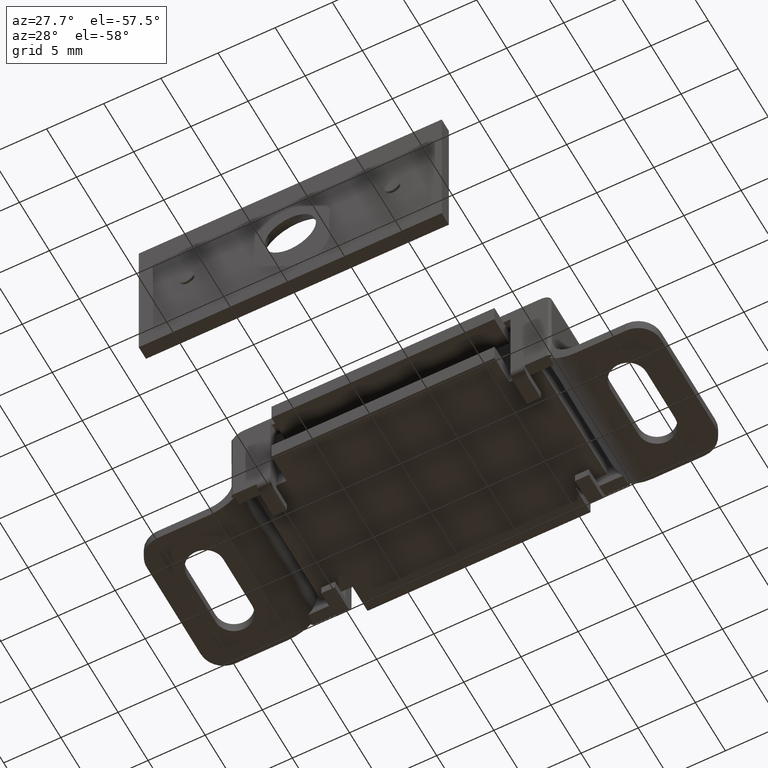
[diagram: clean part render]
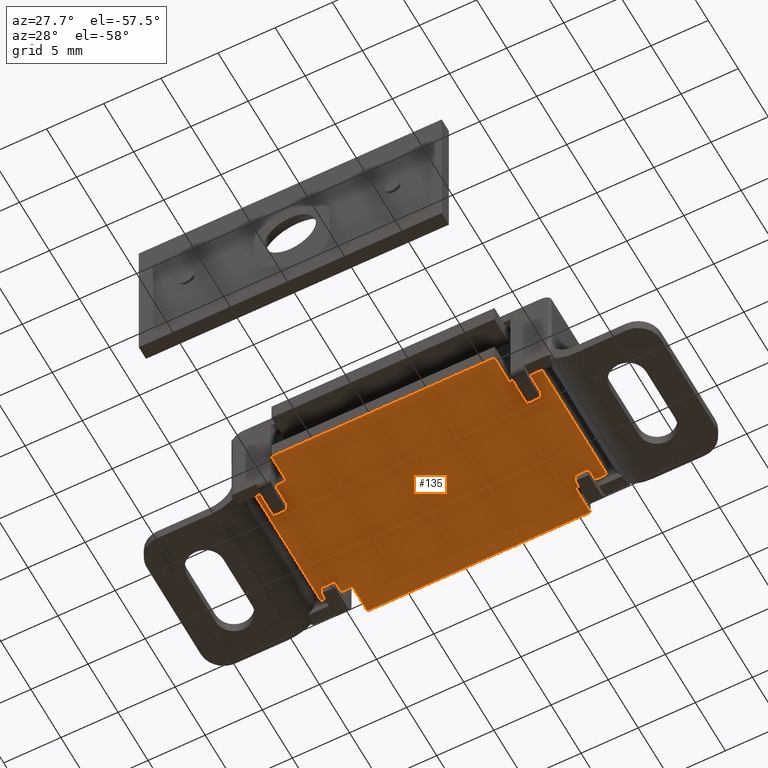
[diagram: same view with one face highlighted and labeled with its STEP entity id]
A machine part, auxiliary view. The second image highlights one B-rep face of the part: STEP entity #135.
In plain terms, the highlighted face is a freeform B-spline surface patch.
Its self-contained STEP definition (entity closure, byte-faithful):
#44=CARTESIAN_POINT('',(-13.748749951545150,-8.799199968988896,1.800003000000000));
#45=CARTESIAN_POINT('',(13.748750622097401,-8.799199968988896,1.800003000000000));
#46=CARTESIAN_POINT('',(-13.748749951545150,8.799200398142338,1.800003000000000));
#47=CARTESIAN_POINT('',(13.748750622097401,8.799200398142338,1.800003000000000));
#48=B_SPLINE_SURFACE_WITH_KNOTS('',1,1,((#44,#46),(#45,#47)),.UNSPECIFIED.,.F.,.F.,.U.,(2,2),(2,2),(0.0,27.497500573642551),(0.0,17.598400367131230),.UNSPECIFIED.);
#49=CARTESIAN_POINT('',(9.750000000000000,-5.500000000000000,1.800003000000050));
#50=VERTEX_POINT('',#49);
#51=CARTESIAN_POINT('',(9.750000000000000,-8.0,1.800003000000050));
#52=VERTEX_POINT('',#51);
#53=CARTESIAN_POINT('',(9.750000000000000,-5.500000000000000,1.800003000000050));
#54=CARTESIAN_POINT('',(9.750000000000000,-8.0,1.800003000000050));
#55=QUASI_UNIFORM_CURVE('',1,(#53,#54),.UNSPECIFIED.,.F.,.U.);
#56=EDGE_CURVE('',#50,#52,#55,.T.);
#57=ORIENTED_EDGE('',*,*,#56,.T.);
#58=CARTESIAN_POINT('',(-9.750000000000000,-8.0,1.800003000000050));
#59=VERTEX_POINT('',#58);
#60=CARTESIAN_POINT('',(9.750000000000000,-8.0,1.800003000000050));
#61=CARTESIAN_POINT('',(-9.750000000000000,-8.0,1.800003000000050));
#62=QUASI_UNIFORM_CURVE('',1,(#60,#61),.UNSPECIFIED.,.F.,.U.);
#63=EDGE_CURVE('',#52,#59,#62,.T.);
#64=ORIENTED_EDGE('',*,*,#63,.T.);
#65=CARTESIAN_POINT('',(-9.750000000000000,-5.500000000000000,1.800003000000050));
#66=VERTEX_POINT('',#65);
#67=CARTESIAN_POINT('',(-9.750000000000000,-8.0,1.800003000000050));
#68=CARTESIAN_POINT('',(-9.750000000000000,-5.500000000000000,1.800003000000050));
#69=QUASI_UNIFORM_CURVE('',1,(#67,#68),.UNSPECIFIED.,.F.,.U.);
#70=EDGE_CURVE('',#59,#66,#69,.T.);
#71=ORIENTED_EDGE('',*,*,#70,.T.);
#72=CARTESIAN_POINT('',(-12.500000000000000,-5.500000000000000,1.800003000000050));
#73=VERTEX_POINT('',#72);
#74=CARTESIAN_POINT('',(-9.750000000000000,-5.500000000000000,1.800003000000050));
#75=CARTESIAN_POINT('',(-12.500000000000000,-5.500000000000000,1.800003000000050));
#76=QUASI_UNIFORM_CURVE('',1,(#74,#75),.UNSPECIFIED.,.F.,.U.);
#77=EDGE_CURVE('',#66,#73,#76,.T.);
#78=ORIENTED_EDGE('',*,*,#77,.T.);
#79=CARTESIAN_POINT('',(-12.500000000000000,5.500000000000000,1.800003000000050));
#80=VERTEX_POINT('',#79);
#81=CARTESIAN_POINT('',(-12.500000000000000,-5.500000000000000,1.800003000000050));
#82=CARTESIAN_POINT('',(-12.500000000000000,5.500000000000000,1.800003000000050));
#83=QUASI_UNIFORM_CURVE('',1,(#81,#82),.UNSPECIFIED.,.F.,.U.);
#84=EDGE_CURVE('',#73,#80,#83,.T.);
#85=ORIENTED_EDGE('',*,*,#84,.T.);
#86=CARTESIAN_POINT('',(-9.750000000000000,5.500000000000000,1.800003000000050));
#87=VERTEX_POINT('',#86);
#88=CARTESIAN_POINT('',(-12.500000000000000,5.500000000000000,1.800003000000050));
#89=CARTESIAN_POINT('',(-9.750000000000000,5.500000000000000,1.800003000000050));
#90=QUASI_UNIFORM_CURVE('',1,(#88,#89),.UNSPECIFIED.,.F.,.U.);
#91=EDGE_CURVE('',#80,#87,#90,.T.);
#92=ORIENTED_EDGE('',*,*,#91,.T.);
#93=CARTESIAN_POINT('',(-9.750000000000000,8.0,1.800003000000050));
#94=VERTEX_POINT('',#93);
#95=CARTESIAN_POINT('',(-9.750000000000000,5.500000000000000,1.800003000000050));
#96=CARTESIAN_POINT('',(-9.750000000000000,8.0,1.800003000000050));
#97=QUASI_UNIFORM_CURVE('',1,(#95,#96),.UNSPECIFIED.,.F.,.U.);
#98=EDGE_CURVE('',#87,#94,#97,.T.);
#99=ORIENTED_EDGE('',*,*,#98,.T.);
#100=CARTESIAN_POINT('',(9.750000000000000,8.0,1.800003000000050));
#101=VERTEX_POINT('',#100);
#102=CARTESIAN_POINT('',(-9.750000000000000,8.0,1.800003000000050));
#103=CARTESIAN_POINT('',(9.750000000000000,8.0,1.800003000000050));
#104=QUASI_UNIFORM_CURVE('',1,(#102,#103),.UNSPECIFIED.,.F.,.U.);
#105=EDGE_CURVE('',#94,#101,#104,.T.);
#106=ORIENTED_EDGE('',*,*,#105,.T.);
#107=CARTESIAN_POINT('',(9.750000000000000,5.500000000000000,1.800003000000050));
#108=VERTEX_POINT('',#107);
#109=CARTESIAN_POINT('',(9.750000000000000,8.0,1.800003000000050));
#110=CARTESIAN_POINT('',(9.750000000000000,5.500000000000000,1.800003000000050));
#111=QUASI_UNIFORM_CURVE('',1,(#109,#110),.UNSPECIFIED.,.F.,.U.);
#112=EDGE_CURVE('',#101,#108,#111,.T.);
#113=ORIENTED_EDGE('',*,*,#112,.T.);
#114=CARTESIAN_POINT('',(12.500000000000000,5.500000000000000,1.800003000000050));
#115=VERTEX_POINT('',#114);
#116=CARTESIAN_POINT('',(9.750000000000000,5.500000000000000,1.800003000000050));
#117=CARTESIAN_POINT('',(12.500000000000000,5.500000000000000,1.800003000000050));
#118=QUASI_UNIFORM_CURVE('',1,(#116,#117),.UNSPECIFIED.,.F.,.U.);
#119=EDGE_CURVE('',#108,#115,#118,.T.);
#120=ORIENTED_EDGE('',*,*,#119,.T.);
#121=CARTESIAN_POINT('',(12.500000000000000,-5.500000000000000,1.800003000000050));
#122=VERTEX_POINT('',#121);
#123=CARTESIAN_POINT('',(12.500000000000000,5.500000000000000,1.800003000000050));
#124=CARTESIAN_POINT('',(12.500000000000000,-5.500000000000000,1.800003000000050));
#125=QUASI_UNIFORM_CURVE('',1,(#123,#124),.UNSPECIFIED.,.F.,.U.);
#126=EDGE_CURVE('',#115,#122,#125,.T.);
#127=ORIENTED_EDGE('',*,*,#126,.T.);
#128=CARTESIAN_POINT('',(12.500000000000000,-5.500000000000000,1.800003000000050));
#129=CARTESIAN_POINT('',(9.750000000000000,-5.500000000000000,1.800003000000050));
#130=QUASI_UNIFORM_CURVE('',1,(#128,#129),.UNSPECIFIED.,.F.,.U.);
#131=EDGE_CURVE('',#122,#50,#130,.T.);
#132=ORIENTED_EDGE('',*,*,#131,.T.);
#133=EDGE_LOOP('',(#57,#64,#71,#78,#85,#92,#99,#106,#113,#120,#127,#132));
#134=FACE_OUTER_BOUND('',#133,.T.);
#135=ADVANCED_FACE('',(#134),#48,.F.);